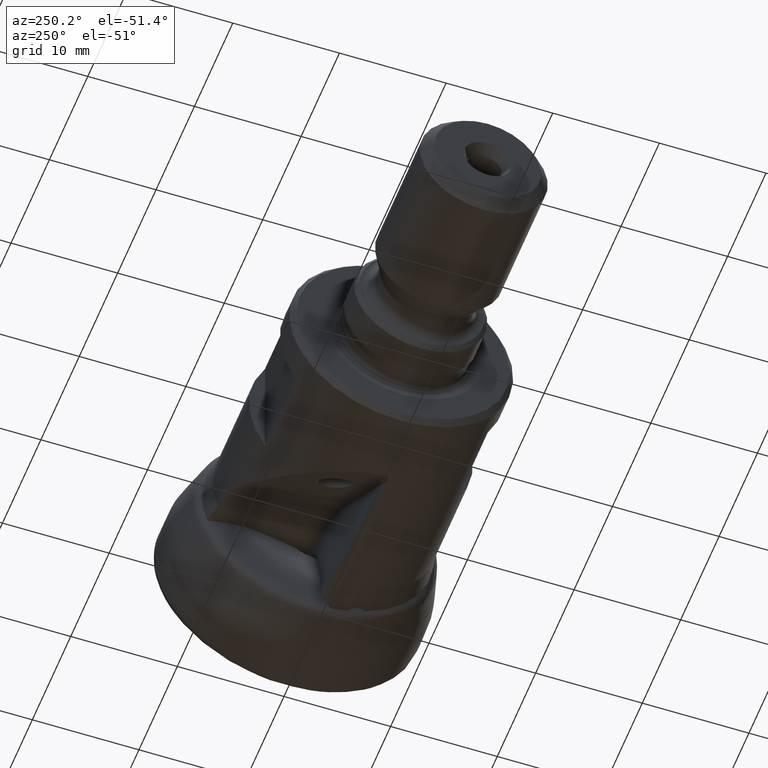
[diagram: clean part render]
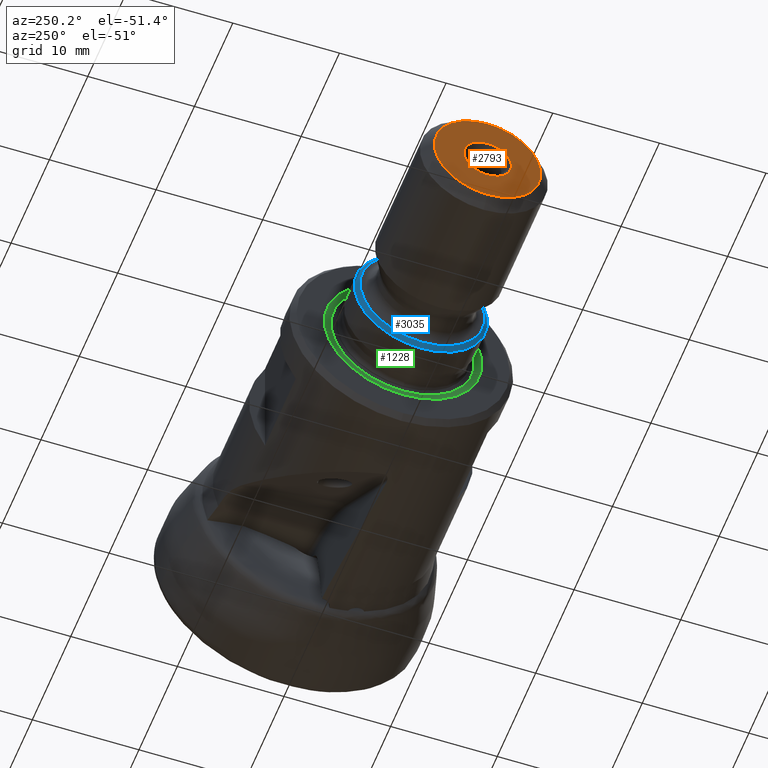
[diagram: same view with three faces highlighted in distinct colors, each labeled with its STEP entity id]
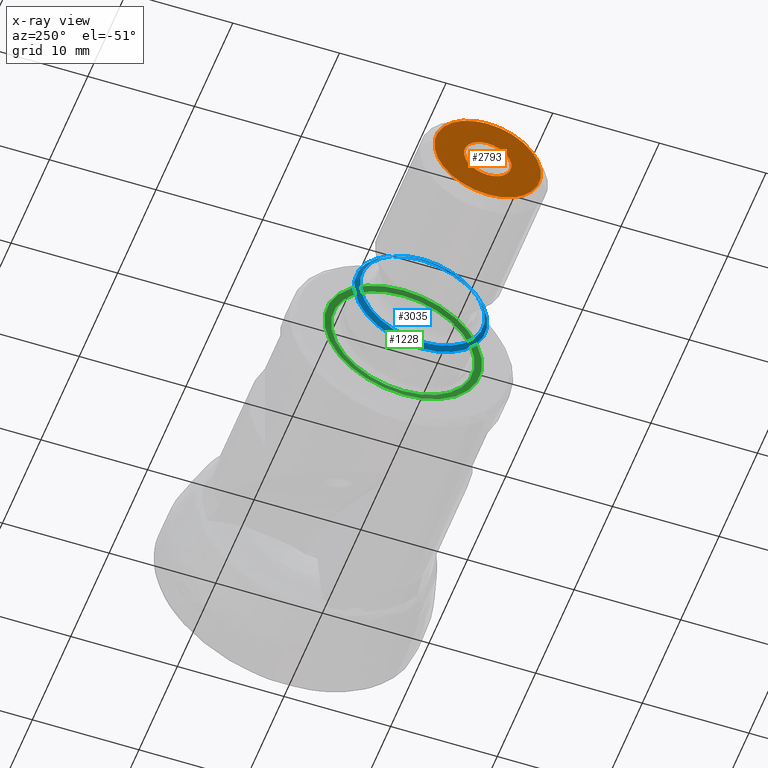
[diagram: x-ray of the same camera — body ghosted, the three highlighted faces saturated]
A machine part, auxiliary view with three faces highlighted in distinct colors.
The next image is the same camera in x-ray (body ghosted, the three faces saturated) — at least one of them is partly hidden behind the body in this view.
Their STEP definitions:

[orange] entity #2793 — the highlighted planar face has unit normal (-1, 0, 0).
#48 = VERTEX_POINT ( 'NONE', #1331 ) ;
#58 = ORIENTED_EDGE ( 'NONE', *, *, #1926, .T. ) ;
#140 = CARTESIAN_POINT ( 'NONE',  ( -53.04999999999999700, 0.0000000000000000000, 0.0000000000000000000 ) ) ;
#225 = FACE_BOUND ( 'NONE', #654, .T. ) ;
#466 = DIRECTION ( 'NONE',  ( 0.0000000000000000000, 0.0000000000000000000, -1.000000000000000000 ) ) ;
#654 = EDGE_LOOP ( 'NONE', ( #58 ) ) ;
#737 = AXIS2_PLACEMENT_3D ( 'NONE', #140, #2308, #466 ) ;
#996 = AXIS2_PLACEMENT_3D ( 'NONE', #3042, #1152, #3352 ) ;
#1152 = DIRECTION ( 'NONE',  ( 1.000000000000000000, -0.0000000000000000000, -0.0000000000000000000 ) ) ;
#1331 = CARTESIAN_POINT ( 'NONE',  ( -53.04999999999999700, 0.0000000000000000000, -2.227350269189612300 ) ) ;
#1352 = CIRCLE ( 'NONE', #996, 4.999999999999992900 ) ;
#1425 = PLANE ( 'NONE',  #3997 ) ;
#1514 = VERTEX_POINT ( 'NONE', #2581 ) ;
#1577 = FACE_OUTER_BOUND ( 'NONE', #1908, .T. ) ;
#1735 = DIRECTION ( 'NONE',  ( 0.0000000000000000000, 0.0000000000000000000, 1.000000000000000000 ) ) ;
#1908 = EDGE_LOOP ( 'NONE', ( #2623 ) ) ;
#1926 = EDGE_CURVE ( 'NONE', #48, #48, #3126, .T. ) ;
#2308 = DIRECTION ( 'NONE',  ( 1.000000000000000000, -0.0000000000000000000, -0.0000000000000000000 ) ) ;
#2346 = CARTESIAN_POINT ( 'NONE',  ( -53.04999999999999700, 4.999999999999992900, 0.0000000000000000000 ) ) ;
#2581 = CARTESIAN_POINT ( 'NONE',  ( -53.04999999999999700, 0.0000000000000000000, -4.999999999999992900 ) ) ;
#2623 = ORIENTED_EDGE ( 'NONE', *, *, #2953, .F. ) ;
#2793 = ADVANCED_FACE ( 'NONE', ( #225, #1577 ), #1425, .T. ) ;
#2953 = EDGE_CURVE ( 'NONE', #1514, #1514, #1352, .T. ) ;
#3042 = CARTESIAN_POINT ( 'NONE',  ( -53.04999999999999700, 0.0000000000000000000, 0.0000000000000000000 ) ) ;
#3126 = CIRCLE ( 'NONE', #737, 2.227350269189612300 ) ;
#3352 = DIRECTION ( 'NONE',  ( 0.0000000000000000000, 0.0000000000000000000, -1.000000000000000000 ) ) ;
#3611 = DIRECTION ( 'NONE',  ( -1.000000000000000000, 0.0000000000000000000, 0.0000000000000000000 ) ) ;
#3997 = AXIS2_PLACEMENT_3D ( 'NONE', #2346, #3611, #1735 ) ;

[blue] entity #3035 — the highlighted conical surface has half-angle 45 deg.
#7 = FACE_BOUND ( 'NONE', #3713, .T. ) ;
#86 = CARTESIAN_POINT ( 'NONE',  ( -35.64999999999999900, 0.0000000000000000000, -6.250000000000000000 ) ) ;
#177 = DIRECTION ( 'NONE',  ( 0.0000000000000000000, 0.0000000000000000000, -1.000000000000000000 ) ) ;
#303 = FACE_OUTER_BOUND ( 'NONE', #1958, .T. ) ;
#693 = VERTEX_POINT ( 'NONE', #729 ) ;
#729 = CARTESIAN_POINT ( 'NONE',  ( -36.04999999999999700, 0.0000000000000000000, -5.849999999999999600 ) ) ;
#1203 = AXIS2_PLACEMENT_3D ( 'NONE', #1780, #3964, #2091 ) ;
#1479 = ORIENTED_EDGE ( 'NONE', *, *, #2769, .T. ) ;
#1499 = CARTESIAN_POINT ( 'NONE',  ( -35.54999999999999700, 0.0000000000000000000, 0.0000000000000000000 ) ) ;
#1525 = CONICAL_SURFACE ( 'NONE', #2026, 6.349999999999999600, 0.7853981633974482800 ) ;
#1780 = CARTESIAN_POINT ( 'NONE',  ( -36.04999999999999700, 0.0000000000000000000, 0.0000000000000000000 ) ) ;
#1806 = DIRECTION ( 'NONE',  ( 1.000000000000000000, -0.0000000000000000000, -0.0000000000000000000 ) ) ;
#1958 = EDGE_LOOP ( 'NONE', ( #1479 ) ) ;
#2026 = AXIS2_PLACEMENT_3D ( 'NONE', #1499, #1806, #3379 ) ;
#2030 = DIRECTION ( 'NONE',  ( -1.000000000000000000, 0.0000000000000000000, 0.0000000000000000000 ) ) ;
#2091 = DIRECTION ( 'NONE',  ( 0.0000000000000000000, 0.0000000000000000000, -1.000000000000000000 ) ) ;
#2527 = AXIS2_PLACEMENT_3D ( 'NONE', #3907, #2030, #177 ) ;
#2651 = CIRCLE ( 'NONE', #1203, 5.849999999999999600 ) ;
#2769 = EDGE_CURVE ( 'NONE', #4001, #4001, #3293, .T. ) ;
#2976 = EDGE_CURVE ( 'NONE', #693, #693, #2651, .T. ) ;
#3035 = ADVANCED_FACE ( 'NONE', ( #7, #303 ), #1525, .T. ) ;
#3293 = CIRCLE ( 'NONE', #2527, 6.250000000000000000 ) ;
#3379 = DIRECTION ( 'NONE',  ( 0.0000000000000000000, 0.0000000000000000000, -1.000000000000000000 ) ) ;
#3713 = EDGE_LOOP ( 'NONE', ( #3944 ) ) ;
#3907 = CARTESIAN_POINT ( 'NONE',  ( -35.64999999999999900, 0.0000000000000000000, 0.0000000000000000000 ) ) ;
#3944 = ORIENTED_EDGE ( 'NONE', *, *, #2976, .T. ) ;
#3964 = DIRECTION ( 'NONE',  ( 1.000000000000000000, -0.0000000000000000000, -0.0000000000000000000 ) ) ;
#4001 = VERTEX_POINT ( 'NONE', #86 ) ;

[green] entity #1228 — the highlighted conical surface has half-angle 82 deg.
#463 = ORIENTED_EDGE ( 'NONE', *, *, #3777, .F. ) ;
#601 = VERTEX_POINT ( 'NONE', #3529 ) ;
#678 = FACE_BOUND ( 'NONE', #1556, .T. ) ;
#890 = VERTEX_POINT ( 'NONE', #3211 ) ;
#1137 = EDGE_LOOP ( 'NONE', ( #463 ) ) ;
#1228 = ADVANCED_FACE ( 'NONE', ( #678, #3881 ), #2384, .F. ) ;
#1336 = DIRECTION ( 'NONE',  ( 1.000000000000000000, -0.0000000000000000000, -0.0000000000000000000 ) ) ;
#1465 = CIRCLE ( 'NONE', #1876, 7.400000000000000400 ) ;
#1556 = EDGE_LOOP ( 'NONE', ( #3569 ) ) ;
#1802 = DIRECTION ( 'NONE',  ( 1.000000000000000000, -0.0000000000000000000, -0.0000000000000000000 ) ) ;
#1810 = EDGE_CURVE ( 'NONE', #890, #890, #2225, .T. ) ;
#1876 = AXIS2_PLACEMENT_3D ( 'NONE', #3683, #1802, #3988 ) ;
#2225 = CIRCLE ( 'NONE', #3132, 6.730010856767593800 ) ;
#2384 = CONICAL_SURFACE ( 'NONE', #3882, 7.400000000000000400, 1.431169893444788700 ) ;
#2750 = CARTESIAN_POINT ( 'NONE',  ( -31.04999999999999700, 0.0000000000000000000, 0.0000000000000000000 ) ) ;
#3132 = AXIS2_PLACEMENT_3D ( 'NONE', #3218, #1336, #3525 ) ;
#3211 = CARTESIAN_POINT ( 'NONE',  ( -30.95583910289867900, 0.0000000000000000000, -6.730010856767593800 ) ) ;
#3218 = CARTESIAN_POINT ( 'NONE',  ( -30.95583910289867900, 0.0000000000000000000, 0.0000000000000000000 ) ) ;
#3525 = DIRECTION ( 'NONE',  ( 0.0000000000000000000, 0.0000000000000000000, -1.000000000000000000 ) ) ;
#3526 = DIRECTION ( 'NONE',  ( -1.000000000000000000, 0.0000000000000000000, 0.0000000000000000000 ) ) ;
#3529 = CARTESIAN_POINT ( 'NONE',  ( -31.04999999999999700, 0.0000000000000000000, -7.400000000000000400 ) ) ;
#3569 = ORIENTED_EDGE ( 'NONE', *, *, #1810, .T. ) ;
#3683 = CARTESIAN_POINT ( 'NONE',  ( -31.04999999999999700, 0.0000000000000000000, 0.0000000000000000000 ) ) ;
#3777 = EDGE_CURVE ( 'NONE', #601, #601, #1465, .T. ) ;
#3797 = DIRECTION ( 'NONE',  ( 0.0000000000000000000, 0.0000000000000000000, 1.000000000000000000 ) ) ;
#3881 = FACE_OUTER_BOUND ( 'NONE', #1137, .T. ) ;
#3882 = AXIS2_PLACEMENT_3D ( 'NONE', #2750, #3526, #3797 ) ;
#3988 = DIRECTION ( 'NONE',  ( 0.0000000000000000000, 0.0000000000000000000, -1.000000000000000000 ) ) ;